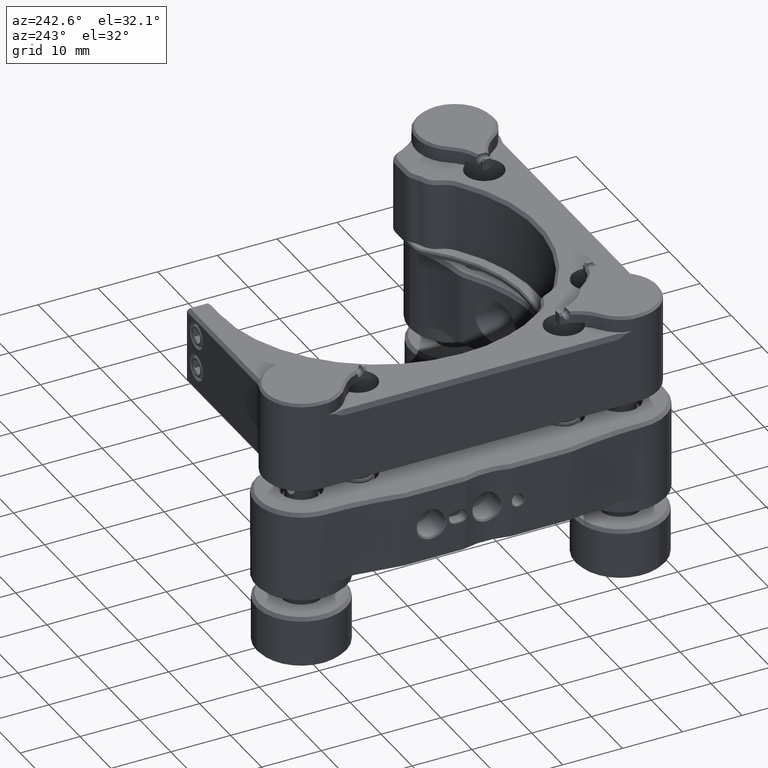
[diagram: clean part render]
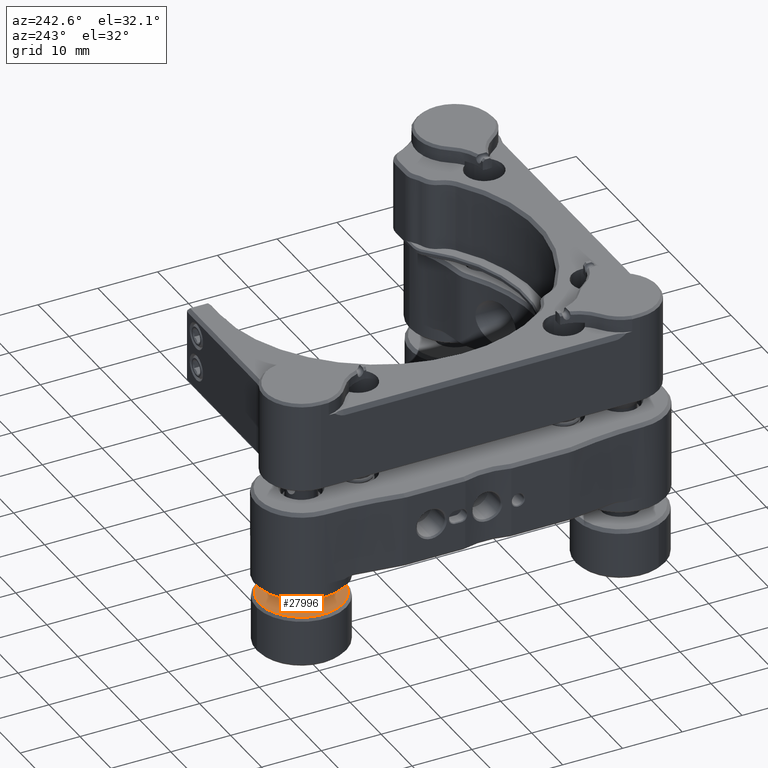
[diagram: same view with one face highlighted and labeled with its STEP entity id]
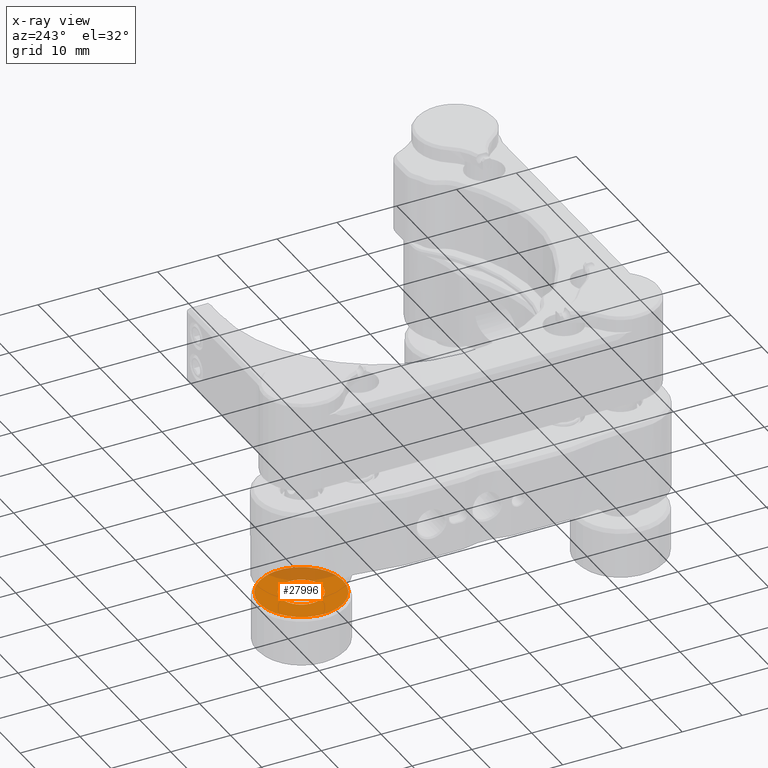
[diagram: x-ray of the same camera — body ghosted, the highlighted face saturated]
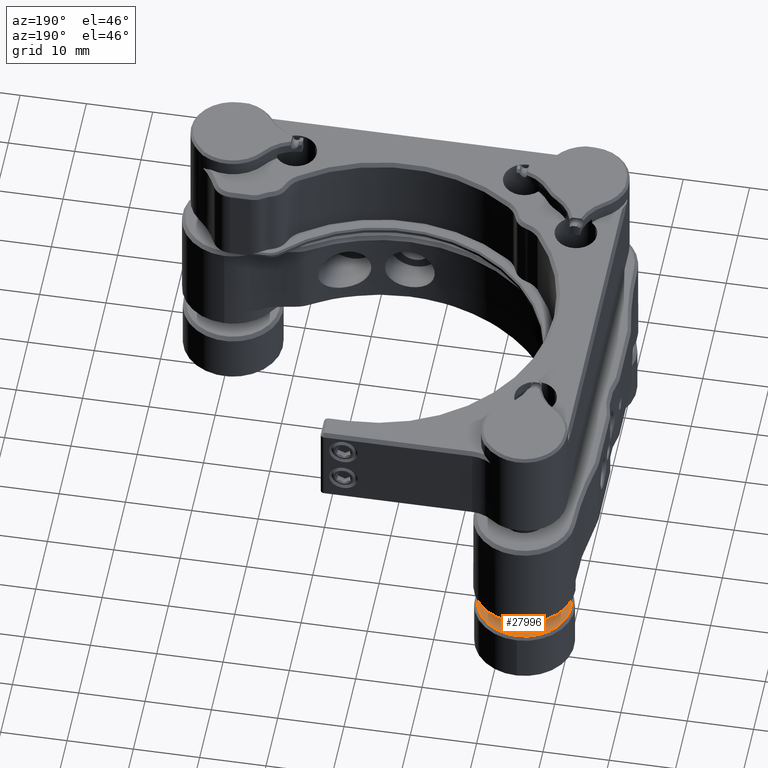
[diagram: same view with one face highlighted and labeled with its STEP entity id]
A machine part, auxiliary view. The second image highlights one B-rep face of the part: STEP entity #27996.
The next image is the same camera in x-ray: the body ghosted, the highlighted face saturated — about 23% of this face is hidden behind the body in this view.
A second angle (auxiliary view) of the same face is appended — the face is thin or edge-on in the first view.
In plain terms, the highlighted planar face has unit normal (0, 0, 1).
Its self-contained STEP definition (entity closure, byte-faithful):
#416 = DIRECTION ( 'NONE',  ( 1.000000000000000000, 0.000000000000000000, 0.000000000000000000 ) ) ;
#1644 = CARTESIAN_POINT ( 'NONE',  ( 8.500000000000000000, 0.000000000000000000, 0.000000000000000000 ) ) ;
#2123 = ORIENTED_EDGE ( 'NONE', *, *, #3655, .T. ) ;
#2598 = CARTESIAN_POINT ( 'NONE',  ( 8.500000000000000000, 0.000000000000000000, -3.500000000000003553 ) ) ;
#3423 = CARTESIAN_POINT ( 'NONE',  ( 8.500000000000000000, 0.000000000000000000, 0.000000000000000000 ) ) ;
#3557 = ORIENTED_EDGE ( 'NONE', *, *, #6049, .T. ) ;
#3655 = EDGE_CURVE ( 'NONE', #14414, #8107, #26004, .T. ) ;
#4323 = DIRECTION ( 'NONE',  ( 0.000000000000000000, 0.000000000000000000, -1.000000000000000000 ) ) ;
#5723 = EDGE_CURVE ( 'NONE', #8107, #14414, #18324, .T. ) ;
#6049 = EDGE_CURVE ( 'NONE', #21357, #26539, #27751, .T. ) ;
#6863 = CARTESIAN_POINT ( 'NONE',  ( 8.500000000000000000, 4.286263797015740046E-16, 3.500000000000003553 ) ) ;
#7146 = EDGE_CURVE ( 'NONE', #26539, #21357, #18533, .T. ) ;
#7201 = CARTESIAN_POINT ( 'NONE',  ( 8.500000000000000000, 0.000000000000000000, 0.000000000000000000 ) ) ;
#8107 = VERTEX_POINT ( 'NONE', #27152 ) ;
#8501 = AXIS2_PLACEMENT_3D ( 'NONE', #22824, #27696, #9473 ) ;
#8518 = AXIS2_PLACEMENT_3D ( 'NONE', #7201, #416, #9405 ) ;
#9405 = DIRECTION ( 'NONE',  ( 0.000000000000000000, 0.000000000000000000, -1.000000000000000000 ) ) ;
#9473 = DIRECTION ( 'NONE',  ( 0.000000000000000000, 0.000000000000000000, -1.000000000000000000 ) ) ;
#9551 = FACE_BOUND ( 'NONE', #17359, .T. ) ;
#10383 = AXIS2_PLACEMENT_3D ( 'NONE', #1644, #19569, #15308 ) ;
#10489 = DIRECTION ( 'NONE',  ( 0.000000000000000000, 0.000000000000000000, -1.000000000000000000 ) ) ;
#10828 = CARTESIAN_POINT ( 'NONE',  ( 8.500000000000000000, 8.878689293818310074E-16, -7.000000000000001776 ) ) ;
#11097 = EDGE_LOOP ( 'NONE', ( #16502, #2123 ) ) ;
#14414 = VERTEX_POINT ( 'NONE', #10828 ) ;
#15308 = DIRECTION ( 'NONE',  ( 0.000000000000000000, 0.000000000000000000, -1.000000000000000000 ) ) ;
#15480 = CARTESIAN_POINT ( 'NONE',  ( 8.500000000000000000, 0.000000000000000000, 0.000000000000000000 ) ) ;
#16005 = FACE_OUTER_BOUND ( 'NONE', #11097, .T. ) ;
#16502 = ORIENTED_EDGE ( 'NONE', *, *, #5723, .T. ) ;
#17359 = EDGE_LOOP ( 'NONE', ( #3557, #19574 ) ) ;
#18043 = AXIS2_PLACEMENT_3D ( 'NONE', #3423, #23398, #10489 ) ;
#18324 = CIRCLE ( 'NONE', #8501, 7.000000000000001776 ) ;
#18533 = CIRCLE ( 'NONE', #18043, 3.500000000000003553 ) ;
#19569 = DIRECTION ( 'NONE',  ( -1.000000000000000000, -0.000000000000000000, -0.000000000000000000 ) ) ;
#19574 = ORIENTED_EDGE ( 'NONE', *, *, #7146, .T. ) ;
#21357 = VERTEX_POINT ( 'NONE', #2598 ) ;
#22824 = CARTESIAN_POINT ( 'NONE',  ( 8.500000000000000000, 0.000000000000000000, 0.000000000000000000 ) ) ;
#23398 = DIRECTION ( 'NONE',  ( -1.000000000000000000, -0.000000000000000000, -0.000000000000000000 ) ) ;
#24436 = DIRECTION ( 'NONE',  ( 1.000000000000000000, 0.000000000000000000, 0.000000000000000000 ) ) ;
#25408 = PLANE ( 'NONE',  #8518 ) ;
#26004 = CIRCLE ( 'NONE', #28365, 7.000000000000001776 ) ;
#26539 = VERTEX_POINT ( 'NONE', #6863 ) ;
#27152 = CARTESIAN_POINT ( 'NONE',  ( 8.500000000000000000, 0.000000000000000000, 7.000000000000001776 ) ) ;
#27696 = DIRECTION ( 'NONE',  ( 1.000000000000000000, 0.000000000000000000, 0.000000000000000000 ) ) ;
#27751 = CIRCLE ( 'NONE', #10383, 3.500000000000003553 ) ;
#27996 = ADVANCED_FACE ( 'NONE', ( #9551, #16005 ), #25408, .T. ) ;
#28365 = AXIS2_PLACEMENT_3D ( 'NONE', #15480, #24436, #4323 ) ;